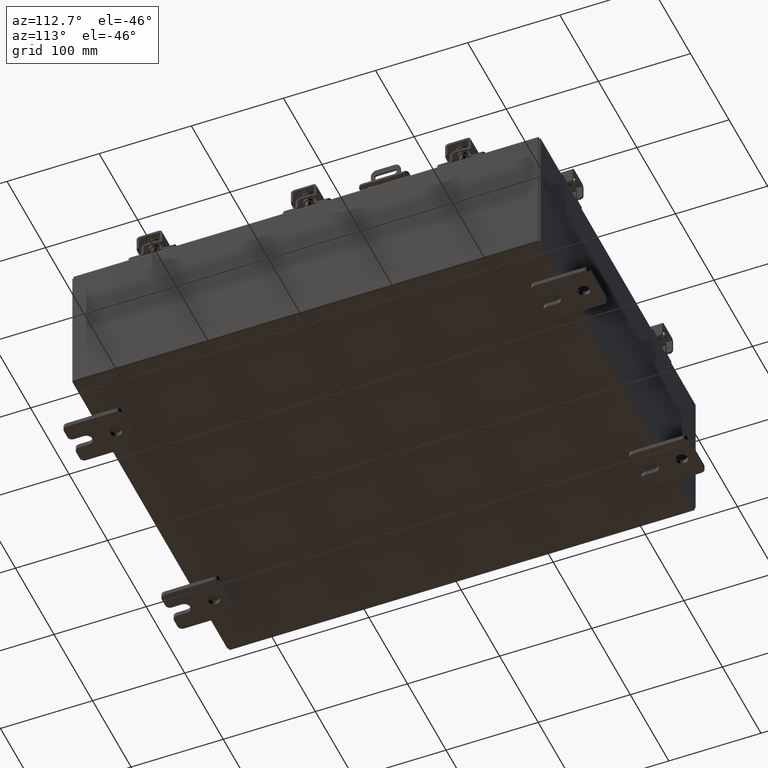
[diagram: clean part render]
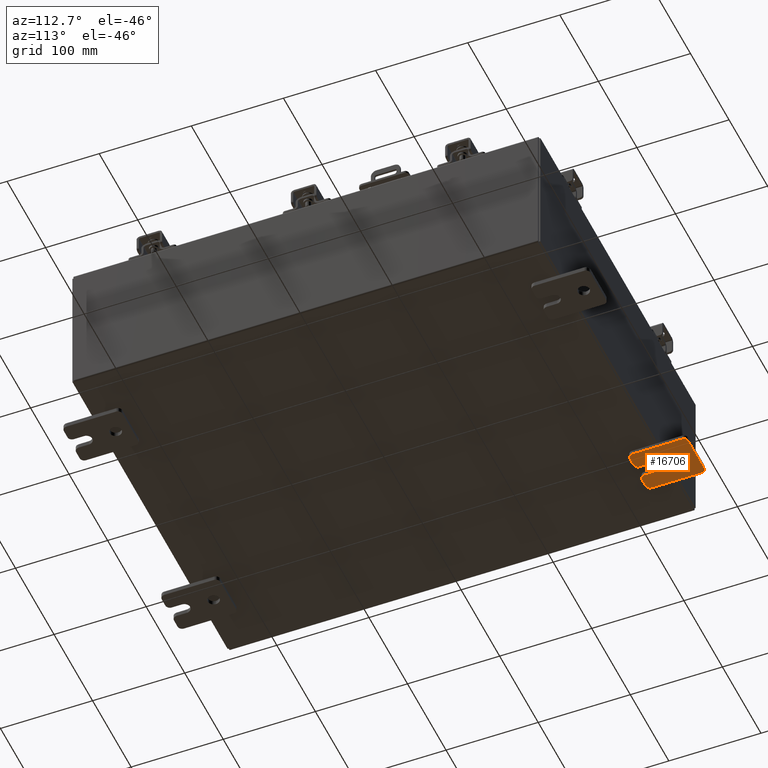
[diagram: same view with one face highlighted and labeled with its STEP entity id]
A machine part, auxiliary view. The second image highlights one B-rep face of the part: STEP entity #16706.
In plain terms, the highlighted planar face has unit normal (0, 0, 1).
Its self-contained STEP definition (entity closure, byte-faithful):
#51 = DIRECTION ( 'NONE',  ( -1.000000000000000000, -0.0000000000000000000, -0.0000000000000000000 ) ) ;
#98 = CARTESIAN_POINT ( 'NONE',  ( -0.1879999999999997500, -1.060000000000002300, 0.8099999999999981700 ) ) ;
#476 = AXIS2_PLACEMENT_3D ( 'NONE', #18331, #7920, #20082 ) ;
#627 = EDGE_CURVE ( 'NONE', #11903, #20674, #16369, .T. ) ;
#827 = EDGE_CURVE ( 'NONE', #11461, #6590, #9033, .T. ) ;
#854 = VECTOR ( 'NONE', #21727, 39.37007874015748100 ) ;
#911 = CARTESIAN_POINT ( 'NONE',  ( -0.1879999999999997500, -1.250000000000004400, -1.000000000000006900 ) ) ;
#1250 = DIRECTION ( 'NONE',  ( 0.0000000000000000000, 0.0000000000000000000, -1.000000000000000000 ) ) ;
#1374 = EDGE_CURVE ( 'NONE', #18850, #6855, #18565, .T. ) ;
#1670 = LINE ( 'NONE', #1673, #19629 ) ;
#1673 = CARTESIAN_POINT ( 'NONE',  ( -0.1879999999999997500, -1.250000000000002200, 0.9999999999999992200 ) ) ;
#1849 = DIRECTION ( 'NONE',  ( 0.0000000000000000000, 0.0000000000000000000, -1.000000000000000000 ) ) ;
#1974 = CARTESIAN_POINT ( 'NONE',  ( -0.1879999999999997500, -1.250000000000002200, 0.8099999999999981700 ) ) ;
#1998 = DIRECTION ( 'NONE',  ( -1.000000000000000000, 6.523827964459549700E-016, 5.163192708025532000E-017 ) ) ;
#2412 = VECTOR ( 'NONE', #8486, 39.37007874015748100 ) ;
#2645 = CARTESIAN_POINT ( 'NONE',  ( -0.1879999999999997500, -1.250000000000004400, -0.8100000000000047200 ) ) ;
#2680 = DIRECTION ( 'NONE',  ( 1.000000000000000000, 0.0000000000000000000, 0.0000000000000000000 ) ) ;
#2771 = CARTESIAN_POINT ( 'NONE',  ( -0.1879999999999997500, 1.059999999999998100, 0.9999999999999958900 ) ) ;
#3455 = AXIS2_PLACEMENT_3D ( 'NONE', #22059, #11656, #1250 ) ;
#3586 = EDGE_CURVE ( 'NONE', #16307, #3700, #9220, .T. ) ;
#3598 = FACE_BOUND ( 'NONE', #10568, .T. ) ;
#3700 = VERTEX_POINT ( 'NONE', #16254 ) ;
#3940 = VECTOR ( 'NONE', #15528, 39.37007874015748100 ) ;
#5068 = EDGE_CURVE ( 'NONE', #11903, #15073, #13855, .T. ) ;
#5934 = VECTOR ( 'NONE', #7410, 39.37007874015748100 ) ;
#6153 = AXIS2_PLACEMENT_3D ( 'NONE', #12405, #1998, #14150 ) ;
#6370 = EDGE_CURVE ( 'NONE', #20734, #16632, #20110, .T. ) ;
#6590 = VERTEX_POINT ( 'NONE', #15777 ) ;
#6613 = VERTEX_POINT ( 'NONE', #1974 ) ;
#6627 = CARTESIAN_POINT ( 'NONE',  ( -0.1879999999999997500, 1.249999999999993600, -0.8100000000000091600 ) ) ;
#6702 = DIRECTION ( 'NONE',  ( -1.000000000000000000, -0.0000000000000000000, -0.0000000000000000000 ) ) ;
#6855 = VERTEX_POINT ( 'NONE', #2645 ) ;
#6903 = ORIENTED_EDGE ( 'NONE', *, *, #17114, .F. ) ;
#7137 = CARTESIAN_POINT ( 'NONE',  ( -0.1880000000000008300, 0.6249999999999988900, 0.0000000000000000000 ) ) ;
#7235 = EDGE_CURVE ( 'NONE', #15020, #13645, #19258, .T. ) ;
#7410 = DIRECTION ( 'NONE',  ( -6.556435184794182400E-016, -1.000000000000000000, -1.639108796198545600E-016 ) ) ;
#7584 = LINE ( 'NONE', #10215, #2412 ) ;
#7678 = VECTOR ( 'NONE', #13683, 39.37007874015748100 ) ;
#7845 = CARTESIAN_POINT ( 'NONE',  ( -0.1879999999999997500, 0.0000000000000000000, 0.0000000000000000000 ) ) ;
#7920 = DIRECTION ( 'NONE',  ( -1.000000000000000000, -0.0000000000000000000, -0.0000000000000000000 ) ) ;
#8015 = VERTEX_POINT ( 'NONE', #16474 ) ;
#8026 = CARTESIAN_POINT ( 'NONE',  ( -0.1879999999999997500, 1.249999999999997800, 0.8099999999999938400 ) ) ;
#8235 = ORIENTED_EDGE ( 'NONE', *, *, #17442, .F. ) ;
#8352 = CARTESIAN_POINT ( 'NONE',  ( -0.1880000000000008300, 0.6249999999999988900, 0.0000000000000000000 ) ) ;
#8433 = DIRECTION ( 'NONE',  ( 6.556435184794182400E-016, 1.000000000000000000, 0.0000000000000000000 ) ) ;
#8486 = DIRECTION ( 'NONE',  ( 0.0000000000000000000, -1.639108796198553600E-015, -1.000000000000000000 ) ) ;
#8888 = DIRECTION ( 'NONE',  ( 0.0000000000000000000, 0.0000000000000000000, -1.000000000000000000 ) ) ;
#8905 = DIRECTION ( 'NONE',  ( 0.0000000000000000000, 0.0000000000000000000, -1.000000000000000000 ) ) ;
#8949 = ORIENTED_EDGE ( 'NONE', *, *, #5068, .T. ) ;
#9033 = LINE ( 'NONE', #20373, #13642 ) ;
#9220 = CIRCLE ( 'NONE', #15890, 0.1900000000000011100 ) ;
#9332 = ORIENTED_EDGE ( 'NONE', *, *, #3586, .T. ) ;
#9769 = CARTESIAN_POINT ( 'NONE',  ( -0.1879999999999997500, -1.060000000000004500, -1.000000000000006900 ) ) ;
#9832 = ORIENTED_EDGE ( 'NONE', *, *, #19038, .F. ) ;
#10083 = DIRECTION ( 'NONE',  ( 0.0000000000000000000, 0.0000000000000000000, -1.000000000000000000 ) ) ;
#10215 = CARTESIAN_POINT ( 'NONE',  ( -0.1879999999999997500, -1.250000000000002200, 0.9999999999999992200 ) ) ;
#10273 = CARTESIAN_POINT ( 'NONE',  ( -0.1879999999999997500, 1.249999999999993600, -1.000000000000010000 ) ) ;
#10457 = CARTESIAN_POINT ( 'NONE',  ( -0.1879999999999997500, -1.060000000000002300, 0.4400000000000018900 ) ) ;
#10568 = EDGE_LOOP ( 'NONE', ( #14224, #20978 ) ) ;
#10623 = ORIENTED_EDGE ( 'NONE', *, *, #627, .F. ) ;
#10624 = LINE ( 'NONE', #911, #854 ) ;
#10828 = CARTESIAN_POINT ( 'NONE',  ( -0.1880000000000002800, -0.6249999999999988900, -0.2499999999999998100 ) ) ;
#10953 = CIRCLE ( 'NONE', #6153, 0.2499999999999999200 ) ;
#11194 = CARTESIAN_POINT ( 'NONE',  ( -0.1880000000000002800, -1.060000000000004500, -0.2499999999999998100 ) ) ;
#11254 = CARTESIAN_POINT ( 'NONE',  ( -0.1879999999999997500, -1.060000000000004500, -0.8100000000000047200 ) ) ;
#11390 = CARTESIAN_POINT ( 'NONE',  ( -0.1880000000000008300, 0.6249999999999988900, -0.2499999999999999200 ) ) ;
#11461 = VERTEX_POINT ( 'NONE', #16812 ) ;
#11656 = DIRECTION ( 'NONE',  ( -1.000000000000000000, -0.0000000000000000000, -0.0000000000000000000 ) ) ;
#11903 = VERTEX_POINT ( 'NONE', #2771 ) ;
#12098 = CARTESIAN_POINT ( 'NONE',  ( -0.1879999999999997500, 1.249999999999997800, 0.9999999999999947800 ) ) ;
#12210 = DIRECTION ( 'NONE',  ( 0.0000000000000000000, 0.0000000000000000000, -1.000000000000000000 ) ) ;
#12257 = DIRECTION ( 'NONE',  ( -1.000000000000000000, -0.0000000000000000000, -0.0000000000000000000 ) ) ;
#12405 = CARTESIAN_POINT ( 'NONE',  ( -0.1880000000000002800, -0.6249999999999988900, 0.0000000000000000000 ) ) ;
#12583 = EDGE_LOOP ( 'NONE', ( #6903, #16432, #10623, #8949, #19814, #9332, #8235, #17768, #9832, #15920, #16304, #17315, #18254, #18055 ) ) ;
#12657 = CIRCLE ( 'NONE', #21851, 0.2499999999999999200 ) ;
#12703 = CIRCLE ( 'NONE', #3455, 0.1900000000000011100 ) ;
#12870 = CARTESIAN_POINT ( 'NONE',  ( -0.1880000000000008300, 0.6249999999999988900, 0.2499999999999999200 ) ) ;
#13089 = PLANE ( 'NONE',  #21315 ) ;
#13642 = VECTOR ( 'NONE', #8433, 39.37007874015748100 ) ;
#13645 = VERTEX_POINT ( 'NONE', #11194 ) ;
#13683 = DIRECTION ( 'NONE',  ( 0.0000000000000000000, -1.000000000000000000, 1.639108796198558100E-015 ) ) ;
#13855 = CIRCLE ( 'NONE', #476, 0.1900000000000011100 ) ;
#14079 = EDGE_CURVE ( 'NONE', #16632, #20734, #12657, .T. ) ;
#14150 = DIRECTION ( 'NONE',  ( -6.829619984160660000E-016, -1.000000000000000000, 0.0000000000000000000 ) ) ;
#14224 = ORIENTED_EDGE ( 'NONE', *, *, #6370, .T. ) ;
#14823 = DIRECTION ( 'NONE',  ( 0.0000000000000000000, 0.0000000000000000000, -1.000000000000000000 ) ) ;
#14855 = CARTESIAN_POINT ( 'NONE',  ( -0.1880000000000002800, -0.6249999999999988900, -0.2499999999999998100 ) ) ;
#15020 = VERTEX_POINT ( 'NONE', #14855 ) ;
#15072 = AXIS2_PLACEMENT_3D ( 'NONE', #8352, #20510, #10083 ) ;
#15073 = VERTEX_POINT ( 'NONE', #8026 ) ;
#15329 = EDGE_CURVE ( 'NONE', #16307, #15073, #17801, .T. ) ;
#15430 = AXIS2_PLACEMENT_3D ( 'NONE', #11254, #16243, #18316 ) ;
#15528 = DIRECTION ( 'NONE',  ( 0.0000000000000000000, 1.639108796198553600E-015, 1.000000000000000000 ) ) ;
#15650 = DIRECTION ( 'NONE',  ( 0.0000000000000000000, -1.639108796198553600E-015, -1.000000000000000000 ) ) ;
#15777 = CARTESIAN_POINT ( 'NONE',  ( -0.1880000000000002800, -0.6249999999999988900, 0.2500000000000008900 ) ) ;
#15890 = AXIS2_PLACEMENT_3D ( 'NONE', #20781, #6702, #8905 ) ;
#15920 = ORIENTED_EDGE ( 'NONE', *, *, #21416, .T. ) ;
#16243 = DIRECTION ( 'NONE',  ( -1.000000000000000000, -0.0000000000000000000, -0.0000000000000000000 ) ) ;
#16254 = CARTESIAN_POINT ( 'NONE',  ( -0.1879999999999997500, 1.059999999999993600, -1.000000000000010000 ) ) ;
#16304 = ORIENTED_EDGE ( 'NONE', *, *, #7235, .F. ) ;
#16307 = VERTEX_POINT ( 'NONE', #6627 ) ;
#16369 = LINE ( 'NONE', #12098, #7678 ) ;
#16432 = ORIENTED_EDGE ( 'NONE', *, *, #18500, .T. ) ;
#16474 = CARTESIAN_POINT ( 'NONE',  ( -0.1879999999999997500, -1.250000000000004400, -0.4399999999999996700 ) ) ;
#16540 = EDGE_CURVE ( 'NONE', #6590, #15020, #10953, .T. ) ;
#16632 = VERTEX_POINT ( 'NONE', #12870 ) ;
#16706 = ADVANCED_FACE ( 'NONE', ( #3598, #21552 ), #13089, .F. ) ;
#16812 = CARTESIAN_POINT ( 'NONE',  ( -0.1880000000000002800, -1.060000000000002300, 0.2500000000000008900 ) ) ;
#17114 = EDGE_CURVE ( 'NONE', #6613, #19138, #1670, .T. ) ;
#17315 = ORIENTED_EDGE ( 'NONE', *, *, #16540, .F. ) ;
#17442 = EDGE_CURVE ( 'NONE', #18850, #3700, #10624, .T. ) ;
#17768 = ORIENTED_EDGE ( 'NONE', *, *, #1374, .T. ) ;
#17801 = LINE ( 'NONE', #10273, #3940 ) ;
#18055 = ORIENTED_EDGE ( 'NONE', *, *, #21034, .T. ) ;
#18229 = CARTESIAN_POINT ( 'NONE',  ( -0.1879999999999997500, -1.060000000000000300, 0.9999999999999992200 ) ) ;
#18254 = ORIENTED_EDGE ( 'NONE', *, *, #827, .F. ) ;
#18316 = DIRECTION ( 'NONE',  ( 0.0000000000000000000, 0.0000000000000000000, -1.000000000000000000 ) ) ;
#18331 = CARTESIAN_POINT ( 'NONE',  ( -0.1879999999999997500, 1.059999999999995800, 0.8099999999999938400 ) ) ;
#18500 = EDGE_CURVE ( 'NONE', #6613, #20674, #19844, .T. ) ;
#18565 = CIRCLE ( 'NONE', #15430, 0.1900000000000011100 ) ;
#18850 = VERTEX_POINT ( 'NONE', #9769 ) ;
#19038 = EDGE_CURVE ( 'NONE', #8015, #6855, #7584, .T. ) ;
#19138 = VERTEX_POINT ( 'NONE', #20873 ) ;
#19258 = LINE ( 'NONE', #10828, #5934 ) ;
#19304 = DIRECTION ( 'NONE',  ( 1.000000000000000000, 0.0000000000000000000, -5.163192708025532000E-017 ) ) ;
#19464 = AXIS2_PLACEMENT_3D ( 'NONE', #10457, #51, #12210 ) ;
#19629 = VECTOR ( 'NONE', #15650, 39.37007874015748100 ) ;
#19786 = CIRCLE ( 'NONE', #19464, 0.1900000000000011400 ) ;
#19814 = ORIENTED_EDGE ( 'NONE', *, *, #15329, .F. ) ;
#19844 = CIRCLE ( 'NONE', #22171, 0.1900000000000011100 ) ;
#20082 = DIRECTION ( 'NONE',  ( 0.0000000000000000000, 0.0000000000000000000, -1.000000000000000000 ) ) ;
#20110 = CIRCLE ( 'NONE', #15072, 0.2499999999999999200 ) ;
#20373 = CARTESIAN_POINT ( 'NONE',  ( -0.1880000000000008300, -1.250000000000004400, 0.2500000000000008900 ) ) ;
#20510 = DIRECTION ( 'NONE',  ( 1.000000000000000000, 0.0000000000000000000, -5.163192708025532000E-017 ) ) ;
#20674 = VERTEX_POINT ( 'NONE', #18229 ) ;
#20734 = VERTEX_POINT ( 'NONE', #11390 ) ;
#20781 = CARTESIAN_POINT ( 'NONE',  ( -0.1879999999999997500, 1.059999999999993600, -0.8100000000000091600 ) ) ;
#20873 = CARTESIAN_POINT ( 'NONE',  ( -0.1879999999999997500, -1.250000000000002200, 0.4400000000000018900 ) ) ;
#20978 = ORIENTED_EDGE ( 'NONE', *, *, #14079, .T. ) ;
#21034 = EDGE_CURVE ( 'NONE', #11461, #19138, #19786, .T. ) ;
#21315 = AXIS2_PLACEMENT_3D ( 'NONE', #7845, #2680, #14823 ) ;
#21416 = EDGE_CURVE ( 'NONE', #8015, #13645, #12703, .T. ) ;
#21552 = FACE_OUTER_BOUND ( 'NONE', #12583, .T. ) ;
#21727 = DIRECTION ( 'NONE',  ( 0.0000000000000000000, 1.000000000000000000, -1.639108796198558100E-015 ) ) ;
#21851 = AXIS2_PLACEMENT_3D ( 'NONE', #7137, #19304, #8888 ) ;
#22059 = CARTESIAN_POINT ( 'NONE',  ( -0.1879999999999997500, -1.060000000000004500, -0.4400000000000007800 ) ) ;
#22171 = AXIS2_PLACEMENT_3D ( 'NONE', #98, #12257, #1849 ) ;